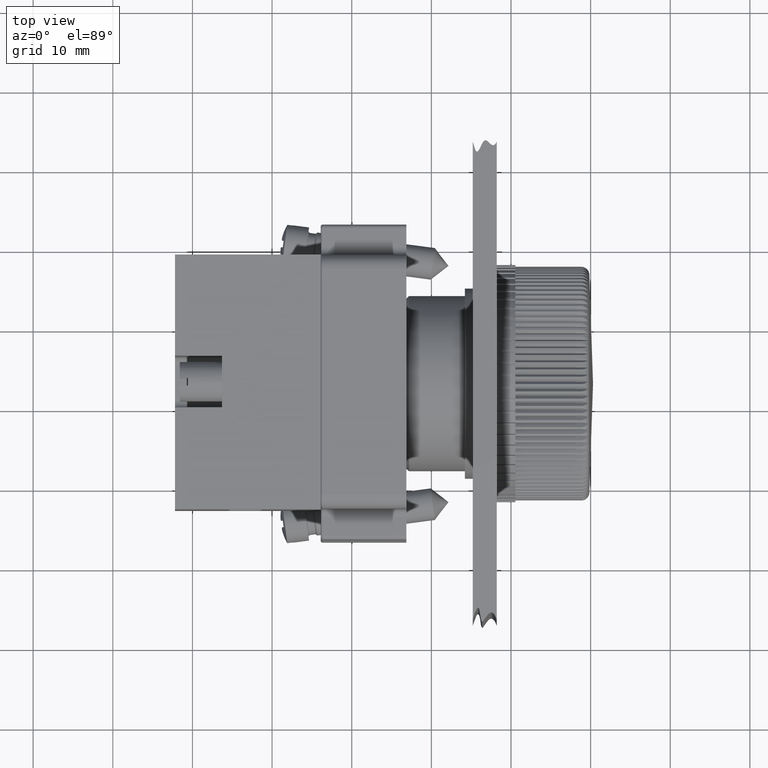
[diagram: clean part render]
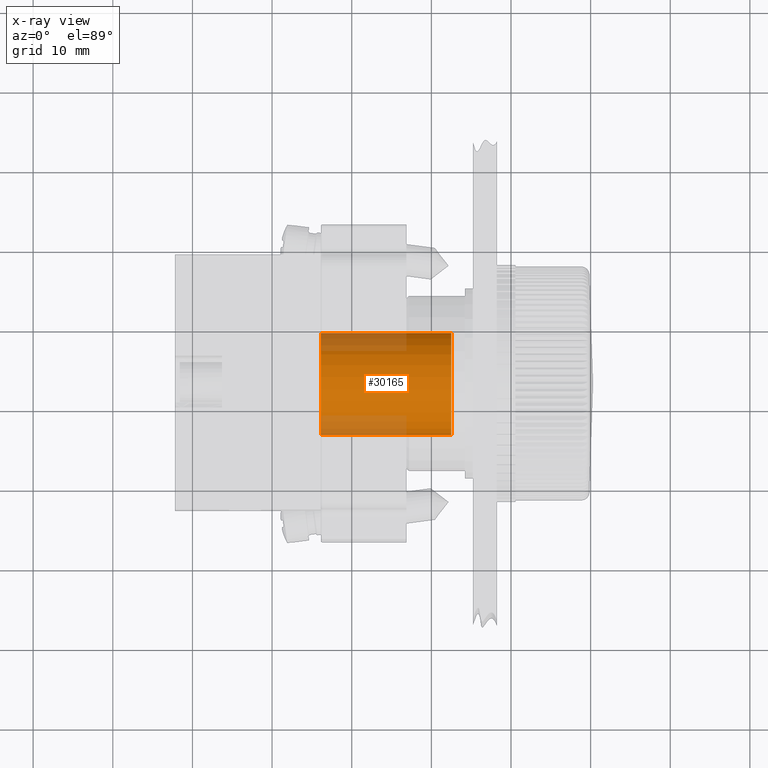
[diagram: x-ray — body ghosted, one internal face saturated and labeled with its STEP entity id]
A machine part, top view, then the same camera in x-ray: the body is ghosted and one INTERNAL B-rep face — a face not visible from any outside direction — is saturated and labeled: STEP entity #30165.
In plain terms, the highlighted cylindrical surface (bore or boss wall) has radius 6.4 mm, axis along (1, 0, 0).
Its self-contained STEP definition (entity closure, byte-faithful):
#30138=CARTESIAN_POINT('',(-3.417123578269125,-3.364098868524204,0.0));
#30139=DIRECTION('',(0.0,0.0,-1.0));
#30140=DIRECTION('',(1.0,0.0,0.0));
#30141=AXIS2_PLACEMENT_3D('',#30138,#30139,#30140);
#30142=CYLINDRICAL_SURFACE('',#30141,6.400000000000001);
#30143=CARTESIAN_POINT('',(-9.817123578269127,-3.364098868524203,-16.399999999999999));
#30144=VERTEX_POINT('',#30143);
#30145=CARTESIAN_POINT('',(-3.417123578269125,-3.364098868524204,-16.399999999999999));
#30146=DIRECTION('',(0.0,0.0,1.0));
#30147=DIRECTION('',(1.0,0.0,0.0));
#30148=AXIS2_PLACEMENT_3D('',#30145,#30146,#30147);
#30149=CIRCLE('',#30148,6.400000000000001);
#30150=EDGE_CURVE('',#30144,#30144,#30149,.T.);
#30151=ORIENTED_EDGE('',*,*,#30150,.T.);
#30152=EDGE_LOOP('',(#30151));
#30153=FACE_OUTER_BOUND('',#30152,.T.);
#30154=CARTESIAN_POINT('',(-9.817123578269127,-3.364098868524203,0.0));
#30155=VERTEX_POINT('',#30154);
#30156=CARTESIAN_POINT('',(-3.417123578269125,-3.364098868524204,0.0));
#30157=DIRECTION('',(0.0,0.0,1.0));
#30158=DIRECTION('',(1.0,0.0,0.0));
#30159=AXIS2_PLACEMENT_3D('',#30156,#30157,#30158);
#30160=CIRCLE('',#30159,6.400000000000001);
#30161=EDGE_CURVE('',#30155,#30155,#30160,.T.);
#30162=ORIENTED_EDGE('',*,*,#30161,.F.);
#30163=EDGE_LOOP('',(#30162));
#30164=FACE_BOUND('',#30163,.T.);
#30165=ADVANCED_FACE('',(#30153,#30164),#30142,.T.);